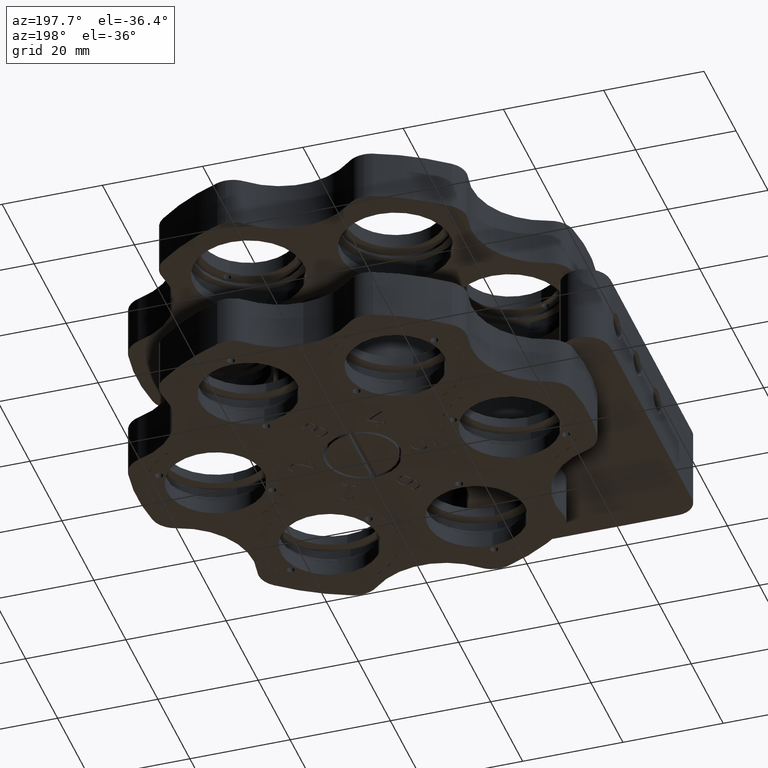
[diagram: clean part render]
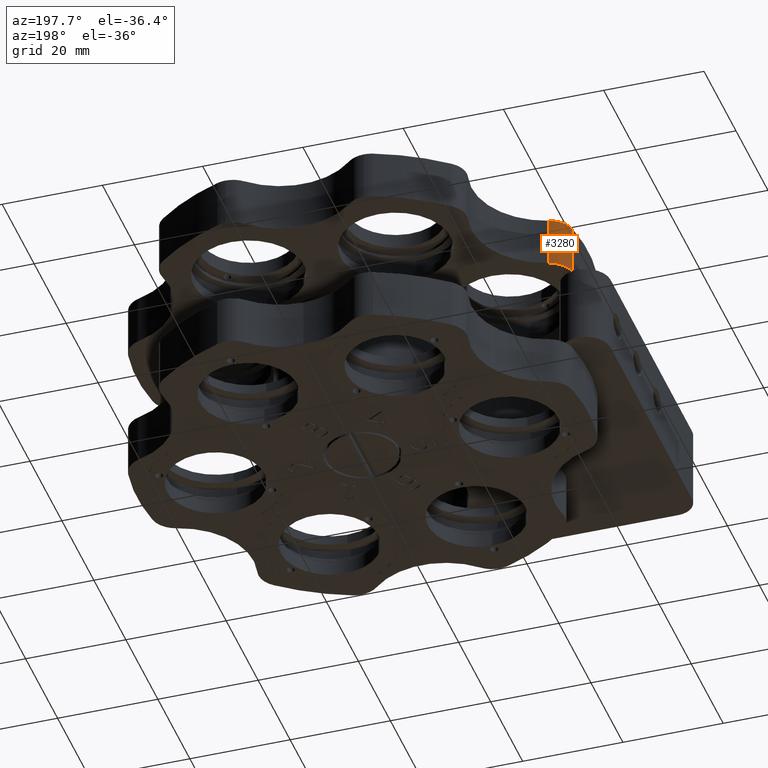
[diagram: same view with one face highlighted and labeled with its STEP entity id]
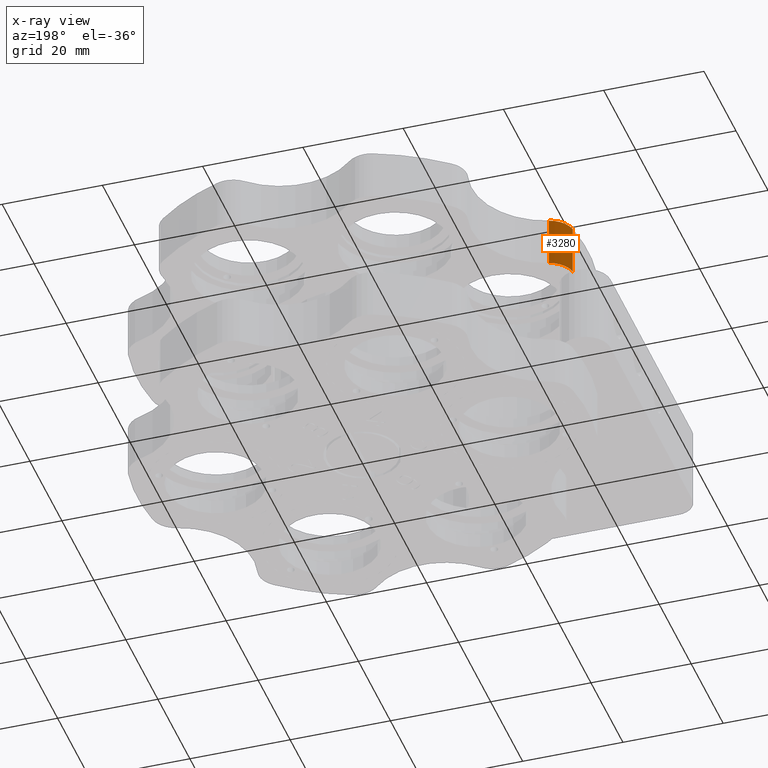
[diagram: x-ray of the same camera — body ghosted, the highlighted face saturated]
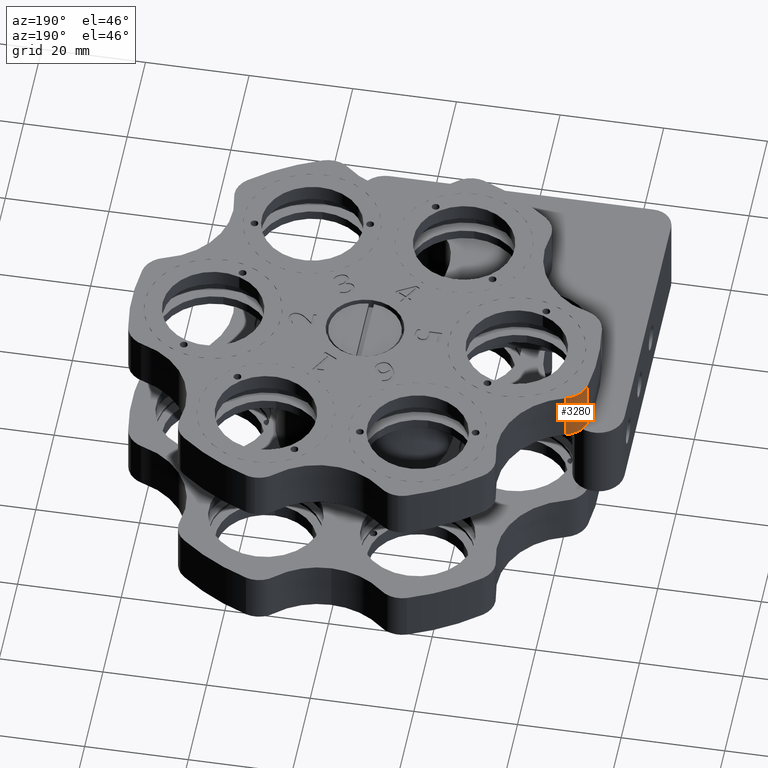
[diagram: same view with one face highlighted and labeled with its STEP entity id]
A machine part, auxiliary view. The second image highlights one B-rep face of the part: STEP entity #3280.
The next image is the same camera in x-ray: the body ghosted, the highlighted face saturated — about 0% of this face is hidden behind the body in this view.
A second angle (auxiliary view) of the same face is appended — the face is thin or edge-on in the first view.
In plain terms, the highlighted cylindrical surface (edge-blend (fillet) strip) has radius 5 mm, axis along (0, 0, -1).
Its self-contained STEP definition (entity closure, byte-faithful):
#431 = VERTEX_POINT ( 'NONE', #6021 ) ;
#2606 = AXIS2_PLACEMENT_3D ( 'NONE', #11277, #17038, #19469 ) ;
#2614 = CARTESIAN_POINT ( 'NONE',  ( -44.34405354773492300, 7.655384703307355200, 10.99999999999999500 ) ) ;
#3280 = ADVANCED_FACE ( 'NONE', ( #25124 ), #3452, .T. ) ;
#3452 = CYLINDRICAL_SURFACE ( 'NONE', #18805, 5.000000000000019500 ) ;
#4728 = AXIS2_PLACEMENT_3D ( 'NONE', #10830, #13119, #23191 ) ;
#5990 = CARTESIAN_POINT ( 'NONE',  ( -40.82103261435433700, 11.60358980220513200, 10.99999999999999800 ) ) ;
#6021 = CARTESIAN_POINT ( 'NONE',  ( -44.34405354773492300, 7.655384703307357900, 0.9999999999999956700 ) ) ;
#6475 = DIRECTION ( 'NONE',  ( 0.0000000000000000000, 1.000000000000000000, 3.469446951953600900E-016 ) ) ;
#7674 = CARTESIAN_POINT ( 'NONE',  ( -40.82103261435433700, 11.60358980220513600, 0.9999999999999974500 ) ) ;
#8678 = ORIENTED_EDGE ( 'NONE', *, *, #16475, .T. ) ;
#9869 = ORIENTED_EDGE ( 'NONE', *, *, #19623, .F. ) ;
#10066 = VERTEX_POINT ( 'NONE', #5990 ) ;
#10263 = VERTEX_POINT ( 'NONE', #7674 ) ;
#10830 = CARTESIAN_POINT ( 'NONE',  ( -39.41693648687548500, 6.804786402939952500, 0.9999999999999961100 ) ) ;
#11277 = CARTESIAN_POINT ( 'NONE',  ( -39.41693648687548500, 6.804786402939949900, 10.99999999999999600 ) ) ;
#11762 = EDGE_CURVE ( 'NONE', #19715, #431, #16950, .T. ) ;
#11769 = CIRCLE ( 'NONE', #4728, 5.000000000000018700 ) ;
#12395 = CARTESIAN_POINT ( 'NONE',  ( -44.34405354773492300, 7.655384703307355200, 10.99999999999999500 ) ) ;
#13119 = DIRECTION ( 'NONE',  ( 1.418662626296614000E-016, 2.885270652500998800E-016, -1.000000000000000000 ) ) ;
#15060 = CARTESIAN_POINT ( 'NONE',  ( -40.82103261435433700, 11.60358980220513200, 10.99999999999999800 ) ) ;
#16470 = DIRECTION ( 'NONE',  ( 1.418662626296614000E-016, 2.885270652500998800E-016, -1.000000000000000000 ) ) ;
#16475 = EDGE_CURVE ( 'NONE', #19715, #10066, #23209, .T. ) ;
#16950 = LINE ( 'NONE', #12395, #26535 ) ;
#17038 = DIRECTION ( 'NONE',  ( 1.418662626296614000E-016, 2.885270652500998800E-016, -1.000000000000000000 ) ) ;
#17095 = DIRECTION ( 'NONE',  ( 1.418662626296614000E-016, 2.885270652500998800E-016, -1.000000000000000000 ) ) ;
#17575 = VECTOR ( 'NONE', #17095, 1000.000000000000000 ) ;
#17864 = EDGE_CURVE ( 'NONE', #10066, #10263, #22999, .T. ) ;
#18669 = CARTESIAN_POINT ( 'NONE',  ( -39.41693648687548500, 6.804786402939949900, 10.99999999999999600 ) ) ;
#18805 = AXIS2_PLACEMENT_3D ( 'NONE', #18669, #22936, #6475 ) ;
#19469 = DIRECTION ( 'NONE',  ( 0.0000000000000000000, 1.000000000000000000, 3.469446951953600900E-016 ) ) ;
#19623 = EDGE_CURVE ( 'NONE', #431, #10263, #11769, .T. ) ;
#19715 = VERTEX_POINT ( 'NONE', #2614 ) ;
#20721 = EDGE_LOOP ( 'NONE', ( #9869, #20877, #8678, #23945 ) ) ;
#20877 = ORIENTED_EDGE ( 'NONE', *, *, #11762, .F. ) ;
#22936 = DIRECTION ( 'NONE',  ( 1.418662626296614000E-016, 2.885270652500998800E-016, -1.000000000000000000 ) ) ;
#22999 = LINE ( 'NONE', #15060, #17575 ) ;
#23191 = DIRECTION ( 'NONE',  ( 0.0000000000000000000, 1.000000000000000000, 3.035766082959401100E-016 ) ) ;
#23209 = CIRCLE ( 'NONE', #2606, 5.000000000000019500 ) ;
#23945 = ORIENTED_EDGE ( 'NONE', *, *, #17864, .T. ) ;
#25124 = FACE_OUTER_BOUND ( 'NONE', #20721, .T. ) ;
#26535 = VECTOR ( 'NONE', #16470, 1000.000000000000000 ) ;